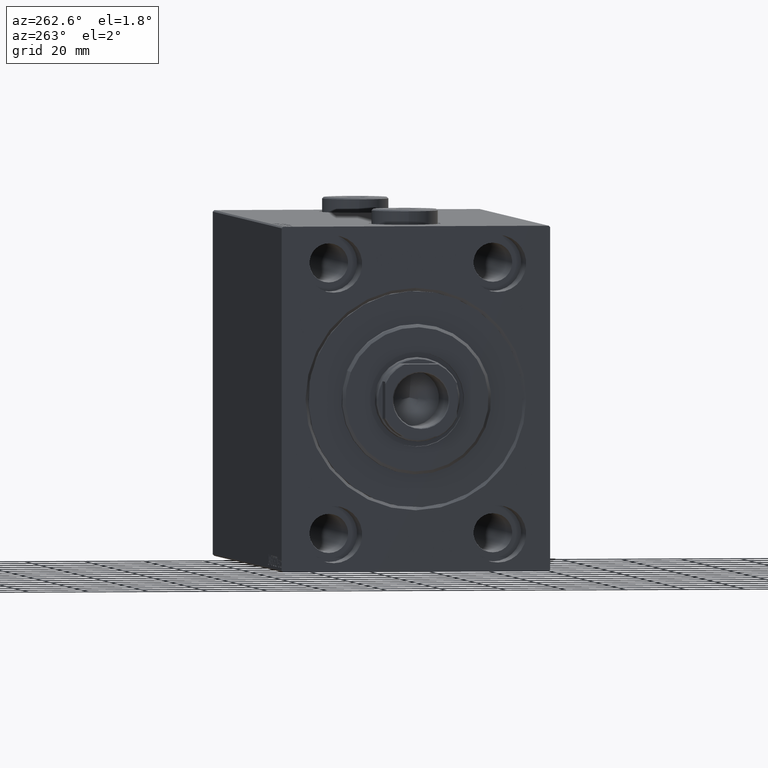
[diagram: clean part render]
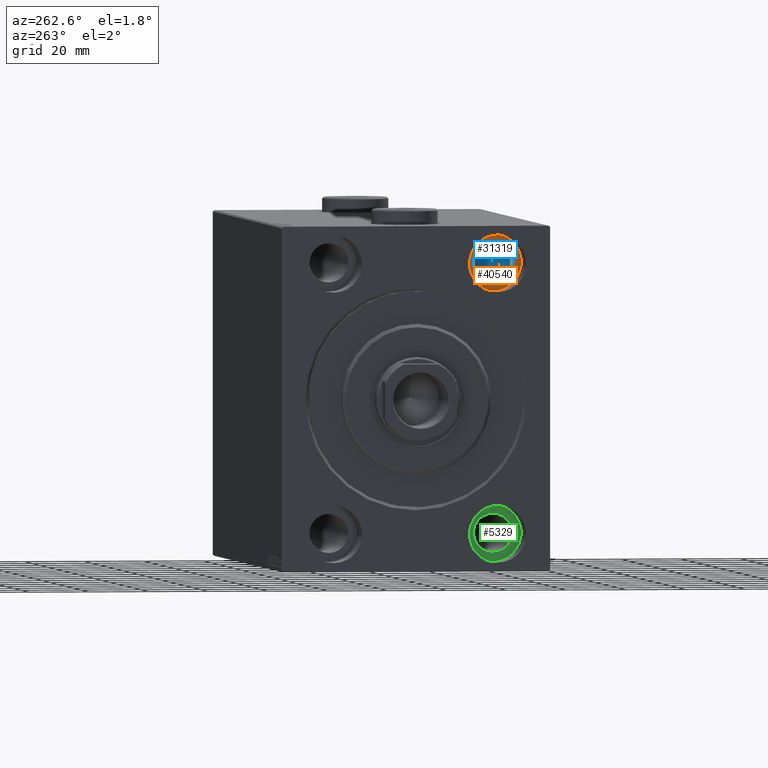
[diagram: same view with three faces highlighted in distinct colors, each labeled with its STEP entity id]
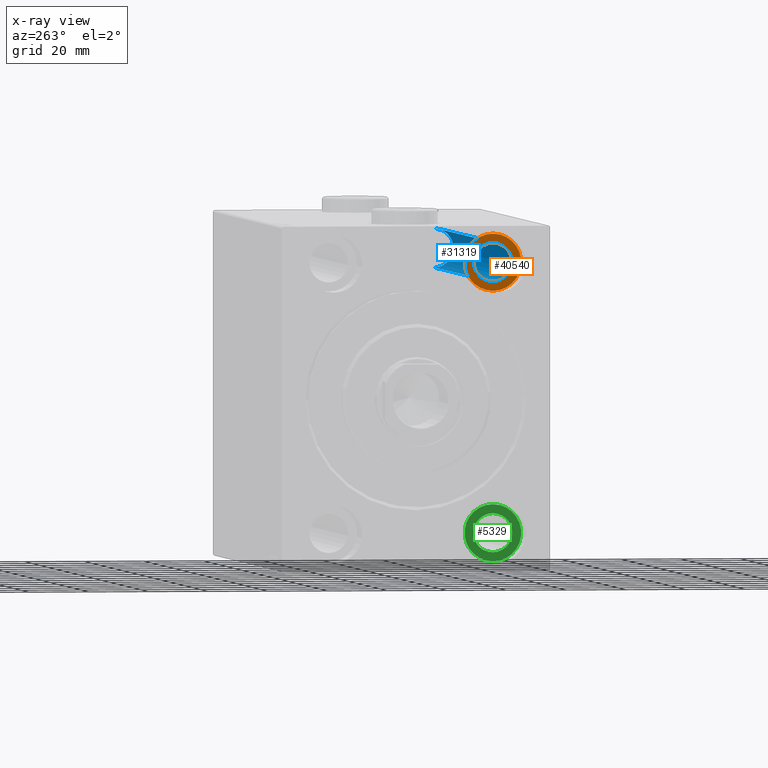
[diagram: x-ray of the same camera — body ghosted, the three highlighted faces saturated]
A machine part, auxiliary view with three faces highlighted in distinct colors.
The next image is the same camera in x-ray (body ghosted, the three faces saturated) — at least one of them is partly hidden behind the body in this view.
Their STEP definitions:

[orange] entity #40540 — the highlighted planar face has unit normal (-1, 0, 0).
#829 = DIRECTION ( 'NONE',  ( 0.000000000000000000, 0.000000000000000000, 1.000000000000000000 ) ) ;
#1179 = DIRECTION ( 'NONE',  ( -1.000000000000000000, 0.000000000000000000, 0.000000000000000000 ) ) ;
#3422 = CARTESIAN_POINT ( 'NONE',  ( 13.00000000000001066, -27.49999999999998934, 38.50000000000000711 ) ) ;
#4289 = EDGE_CURVE ( 'NONE', #44104, #41486, #11402, .T. ) ;
#5761 = CIRCLE ( 'NONE', #35078, 9.500000000000001776 ) ;
#7020 = AXIS2_PLACEMENT_3D ( 'NONE', #18234, #25350, #829 ) ;
#8062 = PLANE ( 'NONE',  #41201 ) ;
#10797 = CARTESIAN_POINT ( 'NONE',  ( 13.00000000000000000, 0.000000000000000000, 0.000000000000000000 ) ) ;
#11402 = CIRCLE ( 'NONE', #7020, 6.499999999999999112 ) ;
#12442 = CARTESIAN_POINT ( 'NONE',  ( 13.00000000000000000, -27.49999999999998934, 45.00000000000000711 ) ) ;
#12914 = EDGE_LOOP ( 'NONE', ( #29494, #40897 ) ) ;
#12947 = DIRECTION ( 'NONE',  ( 0.000000000000000000, 0.000000000000000000, 1.000000000000000000 ) ) ;
#13396 = CARTESIAN_POINT ( 'NONE',  ( 13.00000000000001066, -27.49999999999998934, 45.00000000000000711 ) ) ;
#14656 = CIRCLE ( 'NONE', #20505, 9.500000000000001776 ) ;
#14764 = CARTESIAN_POINT ( 'NONE',  ( 13.00000000000001066, -27.49999999999998934, 51.50000000000000711 ) ) ;
#16176 = VERTEX_POINT ( 'NONE', #29641 ) ;
#17072 = EDGE_CURVE ( 'NONE', #16176, #20723, #5761, .T. ) ;
#18234 = CARTESIAN_POINT ( 'NONE',  ( 13.00000000000001066, -27.49999999999998934, 45.00000000000000711 ) ) ;
#20505 = AXIS2_PLACEMENT_3D ( 'NONE', #12442, #31017, #20670 ) ;
#20617 = CARTESIAN_POINT ( 'NONE',  ( 13.00000000000000000, -27.49999999999998934, 35.50000000000000711 ) ) ;
#20670 = DIRECTION ( 'NONE',  ( 0.000000000000000000, 0.000000000000000000, 1.000000000000000000 ) ) ;
#20723 = VERTEX_POINT ( 'NONE', #20617 ) ;
#22959 = AXIS2_PLACEMENT_3D ( 'NONE', #13396, #23502, #12947 ) ;
#23502 = DIRECTION ( 'NONE',  ( -1.000000000000000000, 0.000000000000000000, 0.000000000000000000 ) ) ;
#25350 = DIRECTION ( 'NONE',  ( -1.000000000000000000, 0.000000000000000000, 0.000000000000000000 ) ) ;
#28139 = ORIENTED_EDGE ( 'NONE', *, *, #44583, .F. ) ;
#28475 = FACE_OUTER_BOUND ( 'NONE', #12914, .T. ) ;
#28520 = CARTESIAN_POINT ( 'NONE',  ( 13.00000000000000000, -27.49999999999998934, 45.00000000000000711 ) ) ;
#29494 = ORIENTED_EDGE ( 'NONE', *, *, #17072, .T. ) ;
#29641 = CARTESIAN_POINT ( 'NONE',  ( 13.00000000000000000, -27.49999999999998934, 54.50000000000000711 ) ) ;
#30381 = EDGE_LOOP ( 'NONE', ( #28139, #43659 ) ) ;
#31017 = DIRECTION ( 'NONE',  ( -1.000000000000000000, 0.000000000000000000, 0.000000000000000000 ) ) ;
#35078 = AXIS2_PLACEMENT_3D ( 'NONE', #28520, #42484, #44676 ) ;
#35318 = EDGE_CURVE ( 'NONE', #20723, #16176, #14656, .T. ) ;
#39015 = DIRECTION ( 'NONE',  ( 0.000000000000000000, 0.000000000000000000, 1.000000000000000000 ) ) ;
#40540 = ADVANCED_FACE ( 'NONE', ( #42670, #28475 ), #8062, .T. ) ;
#40897 = ORIENTED_EDGE ( 'NONE', *, *, #35318, .T. ) ;
#41201 = AXIS2_PLACEMENT_3D ( 'NONE', #10797, #1179, #39015 ) ;
#41486 = VERTEX_POINT ( 'NONE', #14764 ) ;
#42013 = CIRCLE ( 'NONE', #22959, 6.499999999999999112 ) ;
#42484 = DIRECTION ( 'NONE',  ( -1.000000000000000000, 0.000000000000000000, 0.000000000000000000 ) ) ;
#42670 = FACE_BOUND ( 'NONE', #30381, .T. ) ;
#43659 = ORIENTED_EDGE ( 'NONE', *, *, #4289, .F. ) ;
#44104 = VERTEX_POINT ( 'NONE', #3422 ) ;
#44583 = EDGE_CURVE ( 'NONE', #41486, #44104, #42013, .T. ) ;
#44676 = DIRECTION ( 'NONE',  ( 0.000000000000000000, 0.000000000000000000, 1.000000000000000000 ) ) ;

[blue] entity #31319 — the highlighted cylindrical surface (edge-blend (fillet) strip) has radius 6.5 mm, axis along (-1, -0, -0).
#424 = EDGE_LOOP ( 'NONE', ( #42268, #8878, #37183, #39801 ) ) ;
#829 = DIRECTION ( 'NONE',  ( 0.000000000000000000, 0.000000000000000000, 1.000000000000000000 ) ) ;
#1055 = EDGE_CURVE ( 'NONE', #37649, #44104, #18805, .T. ) ;
#1790 = VECTOR ( 'NONE', #12147, 1000.000000000000000 ) ;
#2199 = VECTOR ( 'NONE', #8877, 1000.000000000000000 ) ;
#3422 = CARTESIAN_POINT ( 'NONE',  ( 13.00000000000001066, -27.49999999999998934, 38.50000000000000711 ) ) ;
#4289 = EDGE_CURVE ( 'NONE', #44104, #41486, #11402, .T. ) ;
#5048 = CYLINDRICAL_SURFACE ( 'NONE', #19688, 6.499999999999999112 ) ;
#5435 = LINE ( 'NONE', #13808, #2199 ) ;
#7020 = AXIS2_PLACEMENT_3D ( 'NONE', #18234, #25350, #829 ) ;
#8877 = DIRECTION ( 'NONE',  ( -1.000000000000000000, -0.000000000000000000, -0.000000000000000000 ) ) ;
#8878 = ORIENTED_EDGE ( 'NONE', *, *, #1055, .T. ) ;
#8888 = CIRCLE ( 'NONE', #33766, 6.499999999999999112 ) ;
#11402 = CIRCLE ( 'NONE', #7020, 6.499999999999999112 ) ;
#12147 = DIRECTION ( 'NONE',  ( -1.000000000000000000, -0.000000000000000000, -0.000000000000000000 ) ) ;
#13808 = CARTESIAN_POINT ( 'NONE',  ( 178.0000000000000000, -27.49999999999998934, 51.50000000000000711 ) ) ;
#14764 = CARTESIAN_POINT ( 'NONE',  ( 13.00000000000001066, -27.49999999999998934, 51.50000000000000711 ) ) ;
#15361 = CARTESIAN_POINT ( 'NONE',  ( 178.0000000000000000, -27.49999999999998934, 45.00000000000000711 ) ) ;
#15839 = CARTESIAN_POINT ( 'NONE',  ( 164.9999999999999716, -27.49999999999998934, 45.00000000000000711 ) ) ;
#16942 = CARTESIAN_POINT ( 'NONE',  ( 164.9999999999999716, -27.49999999999998934, 38.50000000000000711 ) ) ;
#17709 = DIRECTION ( 'NONE',  ( 0.000000000000000000, 0.000000000000000000, 1.000000000000000000 ) ) ;
#18234 = CARTESIAN_POINT ( 'NONE',  ( 13.00000000000001066, -27.49999999999998934, 45.00000000000000711 ) ) ;
#18805 = LINE ( 'NONE', #40128, #1790 ) ;
#19688 = AXIS2_PLACEMENT_3D ( 'NONE', #15361, #26130, #17709 ) ;
#20533 = EDGE_CURVE ( 'NONE', #21665, #41486, #5435, .T. ) ;
#21665 = VERTEX_POINT ( 'NONE', #27886 ) ;
#23815 = EDGE_CURVE ( 'NONE', #37649, #21665, #8888, .T. ) ;
#25350 = DIRECTION ( 'NONE',  ( -1.000000000000000000, 0.000000000000000000, 0.000000000000000000 ) ) ;
#26130 = DIRECTION ( 'NONE',  ( -1.000000000000000000, -0.000000000000000000, -0.000000000000000000 ) ) ;
#27886 = CARTESIAN_POINT ( 'NONE',  ( 164.9999999999999716, -27.49999999999998934, 51.50000000000000711 ) ) ;
#31319 = ADVANCED_FACE ( 'NONE', ( #39680 ), #5048, .F. ) ;
#33766 = AXIS2_PLACEMENT_3D ( 'NONE', #15839, #43807, #40388 ) ;
#37183 = ORIENTED_EDGE ( 'NONE', *, *, #4289, .T. ) ;
#37649 = VERTEX_POINT ( 'NONE', #16942 ) ;
#39680 = FACE_OUTER_BOUND ( 'NONE', #424, .T. ) ;
#39801 = ORIENTED_EDGE ( 'NONE', *, *, #20533, .F. ) ;
#40128 = CARTESIAN_POINT ( 'NONE',  ( 178.0000000000000000, -27.49999999999998934, 38.50000000000000711 ) ) ;
#40388 = DIRECTION ( 'NONE',  ( 0.000000000000000000, 0.000000000000000000, -1.000000000000000000 ) ) ;
#41486 = VERTEX_POINT ( 'NONE', #14764 ) ;
#42268 = ORIENTED_EDGE ( 'NONE', *, *, #23815, .F. ) ;
#43807 = DIRECTION ( 'NONE',  ( -1.000000000000000000, -0.000000000000000000, -0.000000000000000000 ) ) ;
#44104 = VERTEX_POINT ( 'NONE', #3422 ) ;

[green] entity #5329 — the highlighted planar face has unit normal (-1, 0, 0).
#3448 = CARTESIAN_POINT ( 'NONE',  ( 13.00000000000001066, -27.50000000000000000, -44.99999999999998579 ) ) ;
#5329 = ADVANCED_FACE ( 'NONE', ( #28896, #42855 ), #19005, .T. ) ;
#7767 = CARTESIAN_POINT ( 'NONE',  ( 13.00000000000000000, -27.50000000000000000, -44.99999999999998579 ) ) ;
#7841 = ORIENTED_EDGE ( 'NONE', *, *, #20640, .T. ) ;
#8076 = CIRCLE ( 'NONE', #25646, 9.500000000000001776 ) ;
#9230 = CARTESIAN_POINT ( 'NONE',  ( 13.00000000000001066, -27.50000000000000000, -44.99999999999998579 ) ) ;
#14696 = CARTESIAN_POINT ( 'NONE',  ( 13.00000000000000000, -27.50000000000000000, -35.49999999999998579 ) ) ;
#14726 = CARTESIAN_POINT ( 'NONE',  ( 13.00000000000000000, -27.50000000000000000, -44.99999999999998579 ) ) ;
#15231 = EDGE_CURVE ( 'NONE', #19491, #23733, #17433, .T. ) ;
#15564 = DIRECTION ( 'NONE',  ( -1.000000000000000000, 0.000000000000000000, 0.000000000000000000 ) ) ;
#15813 = AXIS2_PLACEMENT_3D ( 'NONE', #33019, #15564, #29578 ) ;
#17193 = DIRECTION ( 'NONE',  ( -1.000000000000000000, 0.000000000000000000, 0.000000000000000000 ) ) ;
#17433 = CIRCLE ( 'NONE', #35037, 6.499999999999999112 ) ;
#17638 = EDGE_LOOP ( 'NONE', ( #19128, #38348 ) ) ;
#18696 = VERTEX_POINT ( 'NONE', #28086 ) ;
#19005 = PLANE ( 'NONE',  #15813 ) ;
#19128 = ORIENTED_EDGE ( 'NONE', *, *, #15231, .F. ) ;
#19491 = VERTEX_POINT ( 'NONE', #30865 ) ;
#20470 = AXIS2_PLACEMENT_3D ( 'NONE', #7767, #38953, #41699 ) ;
#20640 = EDGE_CURVE ( 'NONE', #18696, #40520, #8076, .T. ) ;
#20926 = EDGE_LOOP ( 'NONE', ( #35875, #7841 ) ) ;
#21091 = DIRECTION ( 'NONE',  ( 0.000000000000000000, 0.000000000000000000, 1.000000000000000000 ) ) ;
#23172 = CARTESIAN_POINT ( 'NONE',  ( 13.00000000000001066, -27.50000000000000000, -51.49999999999998579 ) ) ;
#23733 = VERTEX_POINT ( 'NONE', #23172 ) ;
#25277 = DIRECTION ( 'NONE',  ( 0.000000000000000000, 0.000000000000000000, 1.000000000000000000 ) ) ;
#25646 = AXIS2_PLACEMENT_3D ( 'NONE', #14726, #42697, #25277 ) ;
#26388 = AXIS2_PLACEMENT_3D ( 'NONE', #9230, #37659, #44064 ) ;
#27103 = CIRCLE ( 'NONE', #26388, 6.499999999999999112 ) ;
#28086 = CARTESIAN_POINT ( 'NONE',  ( 13.00000000000000000, -27.50000000000000000, -54.49999999999998579 ) ) ;
#28896 = FACE_BOUND ( 'NONE', #17638, .T. ) ;
#29578 = DIRECTION ( 'NONE',  ( 0.000000000000000000, 0.000000000000000000, 1.000000000000000000 ) ) ;
#30865 = CARTESIAN_POINT ( 'NONE',  ( 13.00000000000001066, -27.50000000000000000, -38.49999999999998579 ) ) ;
#33019 = CARTESIAN_POINT ( 'NONE',  ( 13.00000000000000000, 0.000000000000000000, 0.000000000000000000 ) ) ;
#34110 = EDGE_CURVE ( 'NONE', #40520, #18696, #40264, .T. ) ;
#34571 = EDGE_CURVE ( 'NONE', #23733, #19491, #27103, .T. ) ;
#35037 = AXIS2_PLACEMENT_3D ( 'NONE', #3448, #17193, #21091 ) ;
#35875 = ORIENTED_EDGE ( 'NONE', *, *, #34110, .T. ) ;
#37659 = DIRECTION ( 'NONE',  ( -1.000000000000000000, 0.000000000000000000, 0.000000000000000000 ) ) ;
#38348 = ORIENTED_EDGE ( 'NONE', *, *, #34571, .F. ) ;
#38953 = DIRECTION ( 'NONE',  ( -1.000000000000000000, 0.000000000000000000, 0.000000000000000000 ) ) ;
#40264 = CIRCLE ( 'NONE', #20470, 9.500000000000001776 ) ;
#40520 = VERTEX_POINT ( 'NONE', #14696 ) ;
#41699 = DIRECTION ( 'NONE',  ( 0.000000000000000000, 0.000000000000000000, 1.000000000000000000 ) ) ;
#42697 = DIRECTION ( 'NONE',  ( -1.000000000000000000, 0.000000000000000000, 0.000000000000000000 ) ) ;
#42855 = FACE_OUTER_BOUND ( 'NONE', #20926, .T. ) ;
#44064 = DIRECTION ( 'NONE',  ( 0.000000000000000000, 0.000000000000000000, 1.000000000000000000 ) ) ;